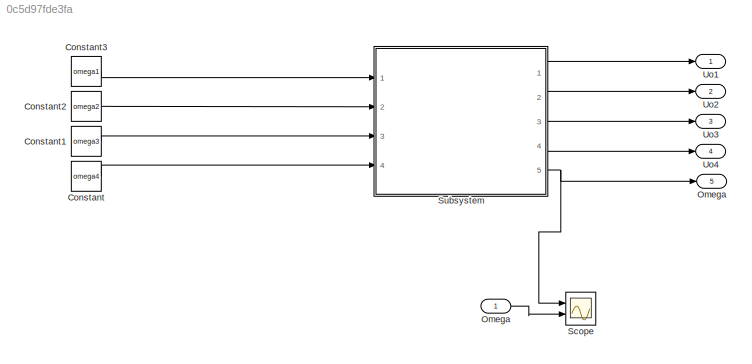
MODEL slx_0c5d97fde3fa
KIND model
CONFIG AbsTol = auto
CONFIG EnableMultiTasking = off
CONFIG FixedStep = auto
CONFIG MaxStep = auto
CONFIG MinStep = auto
CONFIG RelTol = 1e-3
CONFIG SampleTimeConstraint = Unconstrained
CONFIG Solver = VariableStepAuto
CONFIG SolverName = VariableStepAuto
CONFIG StartTime = 0.0
CONFIG StopTime = 10.0
BLOCK [Constant] Constant
  Value = omega4
BLOCK [Constant] Constant1
  Value = omega3
BLOCK [Constant] Constant2
  Value = omega2
BLOCK [Constant] Constant3
  Value = omega1
BLOCK [Outport] Omega
  IconDisplay = Port number
  Port = 5
BLOCK [Inport] Omega 
  IconDisplay = Port number
BLOCK [Scope] Scope
  Floating = off
  NumInputPorts = 2
  Ports = [2]
  ScopeSpecificationString = Simulink.scopes.TimeScopeBlockCfg('CurrentConfiguration', extmgr.ConfigurationSet(extmgr.Configuration('Core','General UI',true),extmgr.Configuration('Core','Source UI',true),extmgr.Configuration('Sources','WiredSimulink',true),extmgr.Configuration('Visuals','Time Domain',true,'SerializedDisplays',{struct('MinYLimReal','-1.00000','MaxYLimReal','1.00000','YLabelReal','','MinYLimMag','0.00000','MaxY...<+1399ch>
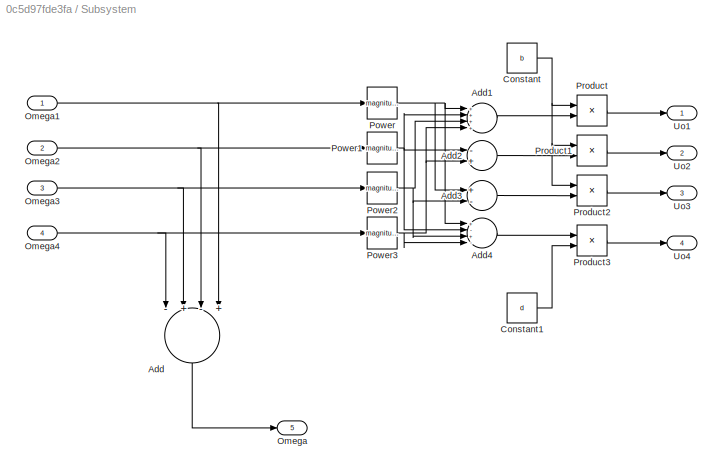
BLOCK [SubSystem] Subsystem
  Ports = [4, 5]
  RequestExecContextInheritance = off
BLOCK [Sum] Subsystem/Add
  InputSameDT = off
  Inputs = -+-+
  OutDataTypeStr = Inherit: Inherit via internal rule
  Ports = [4, 1]
  SaturateOnIntegerOverflow = off
BLOCK [Sum] Subsystem/Add1
  InputSameDT = off
  Inputs = ++++
  OutDataTypeStr = Inherit: Inherit via internal rule
  Ports = [4, 1]
  SaturateOnIntegerOverflow = off
BLOCK [Sum] Subsystem/Add2
  InputSameDT = off
  Inputs = -+
  OutDataTypeStr = Inherit: Inherit via internal rule
  Ports = [2, 1]
  SaturateOnIntegerOverflow = off
BLOCK [Sum] Subsystem/Add3
  InputSameDT = off
  Inputs = +-
  OutDataTypeStr = Inherit: Inherit via internal rule
  Ports = [2, 1]
  SaturateOnIntegerOverflow = off
BLOCK [Sum] Subsystem/Add4
  InputSameDT = off
  Inputs = +-+-
  OutDataTypeStr = Inherit: Inherit via internal rule
  Ports = [4, 1]
  SaturateOnIntegerOverflow = off
BLOCK [Constant] Subsystem/Constant
  Value = b
BLOCK [Constant] Subsystem/Constant1
  Value = d
BLOCK [Outport] Subsystem/Omega
  IconDisplay = Port number
  Port = 5
BLOCK [Inport] Subsystem/Omega1
  IconDisplay = Port number
BLOCK [Inport] Subsystem/Omega2
  IconDisplay = Port number
  Port = 2
BLOCK [Inport] Subsystem/Omega3
  IconDisplay = Port number
  Port = 3
BLOCK [Inport] Subsystem/Omega4
  IconDisplay = Port number
  Port = 4
BLOCK [Math] Subsystem/Power
  Operator = magnitude^2
  Ports = [1, 1]
BLOCK [Math] Subsystem/Power1
  Operator = magnitude^2
  Ports = [1, 1]
BLOCK [Math] Subsystem/Power2
  Operator = magnitude^2
  Ports = [1, 1]
BLOCK [Math] Subsystem/Power3
  Operator = magnitude^2
  Ports = [1, 1]
BLOCK [Product] Subsystem/Product
  InputSameDT = off
  OutDataTypeStr = Inherit: Inherit via internal rule
  Ports = [2, 1]
  RndMeth = Floor
  SaturateOnIntegerOverflow = off
BLOCK [Product] Subsystem/Product1
  InputSameDT = off
  OutDataTypeStr = Inherit: Inherit via internal rule
  Ports = [2, 1]
  RndMeth = Floor
  SaturateOnIntegerOverflow = off
BLOCK [Product] Subsystem/Product2
  InputSameDT = off
  OutDataTypeStr = Inherit: Inherit via internal rule
  Ports = [2, 1]
  RndMeth = Floor
  SaturateOnIntegerOverflow = off
BLOCK [Product] Subsystem/Product3
  InputSameDT = off
  OutDataTypeStr = Inherit: Inherit via internal rule
  Ports = [2, 1]
  RndMeth = Floor
  SaturateOnIntegerOverflow = off
BLOCK [Outport] Subsystem/Uo1
  IconDisplay = Port number
BLOCK [Outport] Subsystem/Uo2
  IconDisplay = Port number
  Port = 2
BLOCK [Outport] Subsystem/Uo3
  IconDisplay = Port number
  Port = 3
BLOCK [Outport] Subsystem/Uo4
  IconDisplay = Port number
  Port = 4
BLOCK [Outport] Uo1
  IconDisplay = Port number
BLOCK [Outport] Uo2
  IconDisplay = Port number
  Port = 2
BLOCK [Outport] Uo3
  IconDisplay = Port number
  Port = 3
BLOCK [Outport] Uo4
  IconDisplay = Port number
  Port = 4
LINE Constant1:1 -> Subsystem:3
LINE Constant2:1 -> Subsystem:2
LINE Constant3:1 -> Subsystem:1
LINE Constant:1 -> Subsystem:4
LINE Omega :1 -> Scope:2
LINE Subsystem/Add1:1 -> Subsystem/Product:2
LINE Subsystem/Add2:1 -> Subsystem/Product1:2
LINE Subsystem/Add3:1 -> Subsystem/Product2:2
LINE Subsystem/Add4:1 -> Subsystem/Product3:1
LINE Subsystem/Add:1 -> Subsystem/Omega:1
LINE Subsystem/Constant1:1 -> Subsystem/Product3:2
NET Subsystem/Constant:1 -> Subsystem/Product1:1, Subsystem/Product2:1, Subsystem/Product:1
NET Subsystem/Omega1:1 -> Subsystem/Add:4, Subsystem/Power:1
NET Subsystem/Omega2:1 -> Subsystem/Add:3, Subsystem/Power1:1
NET Subsystem/Omega3:1 -> Subsystem/Add:2, Subsystem/Power2:1
NET Subsystem/Omega4:1 -> Subsystem/Add:1, Subsystem/Power3:1
NET Subsystem/Power1:1 -> Subsystem/Add1:2, Subsystem/Add2:1, Subsystem/Add4:2
NET Subsystem/Power2:1 -> Subsystem/Add1:3, Subsystem/Add3:2, Subsystem/Add4:3
NET Subsystem/Power3:1 -> Subsystem/Add1:4, Subsystem/Add2:2, Subsystem/Add4:4
NET Subsystem/Power:1 -> Subsystem/Add1:1, Subsystem/Add3:1, Subsystem/Add4:1
LINE Subsystem/Product1:1 -> Subsystem/Uo2:1
LINE Subsystem/Product2:1 -> Subsystem/Uo3:1
LINE Subsystem/Product3:1 -> Subsystem/Uo4:1
LINE Subsystem/Product:1 -> Subsystem/Uo1:1
LINE Subsystem:1 -> Uo1:1
LINE Subsystem:2 -> Uo2:1
LINE Subsystem:3 -> Uo3:1
LINE Subsystem:4 -> Uo4:1
NET Subsystem:5 -> Omega:1, Scope:1
note: NET lines group one-source signal fan-out (src -> all destinations, sorted); 1:1 wires keep LINE
